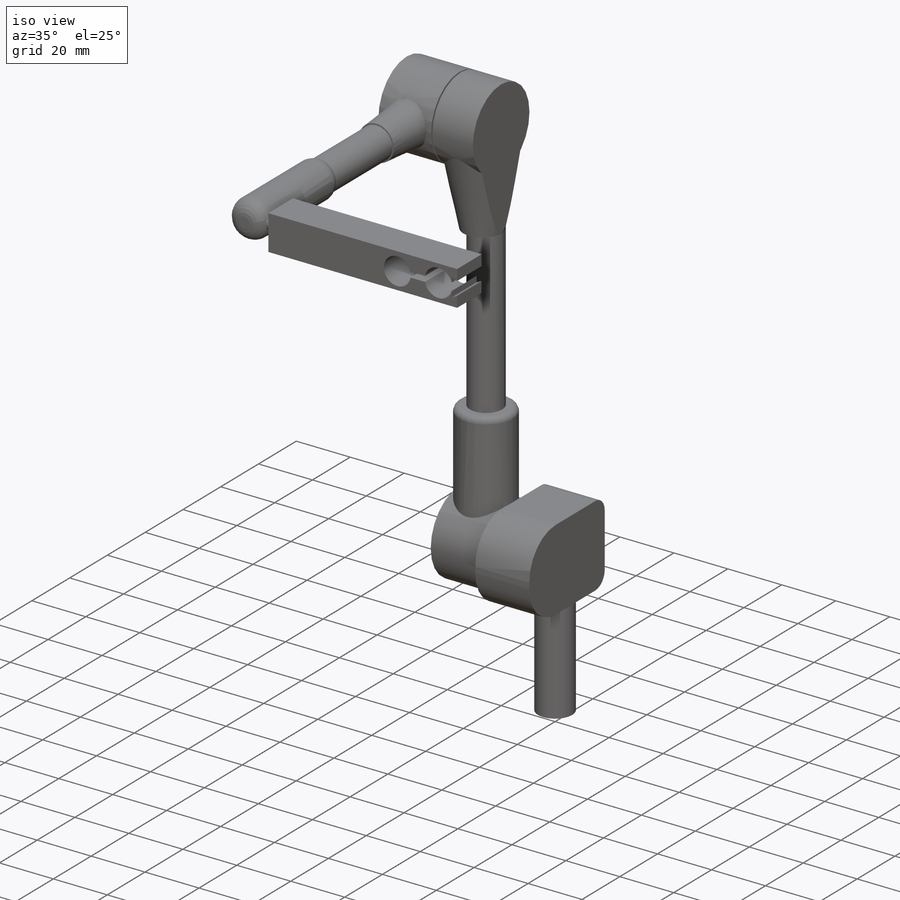
[diagram: iso view]
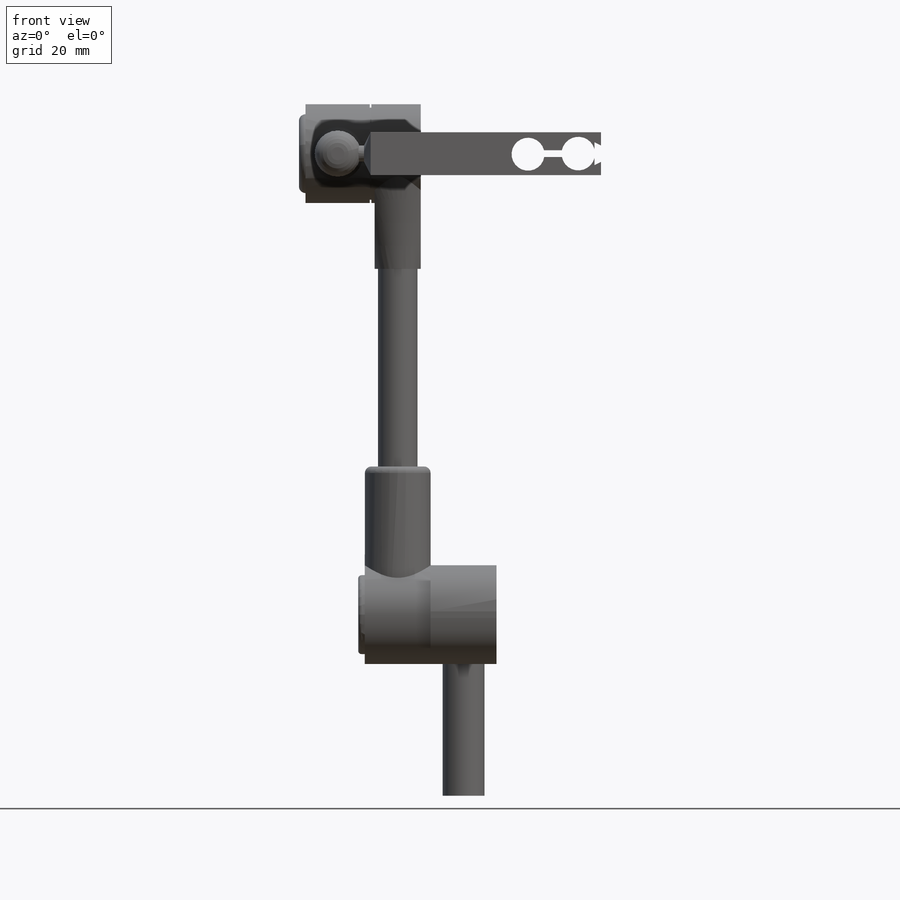
[diagram: front view]
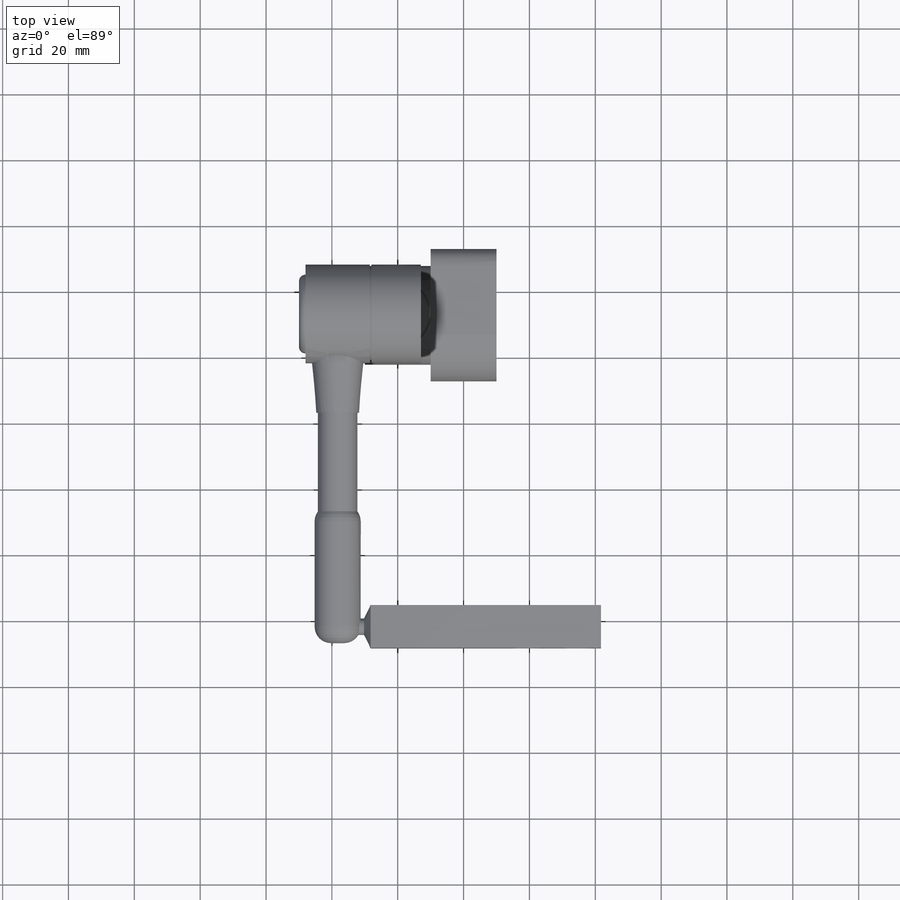
[diagram: top view]
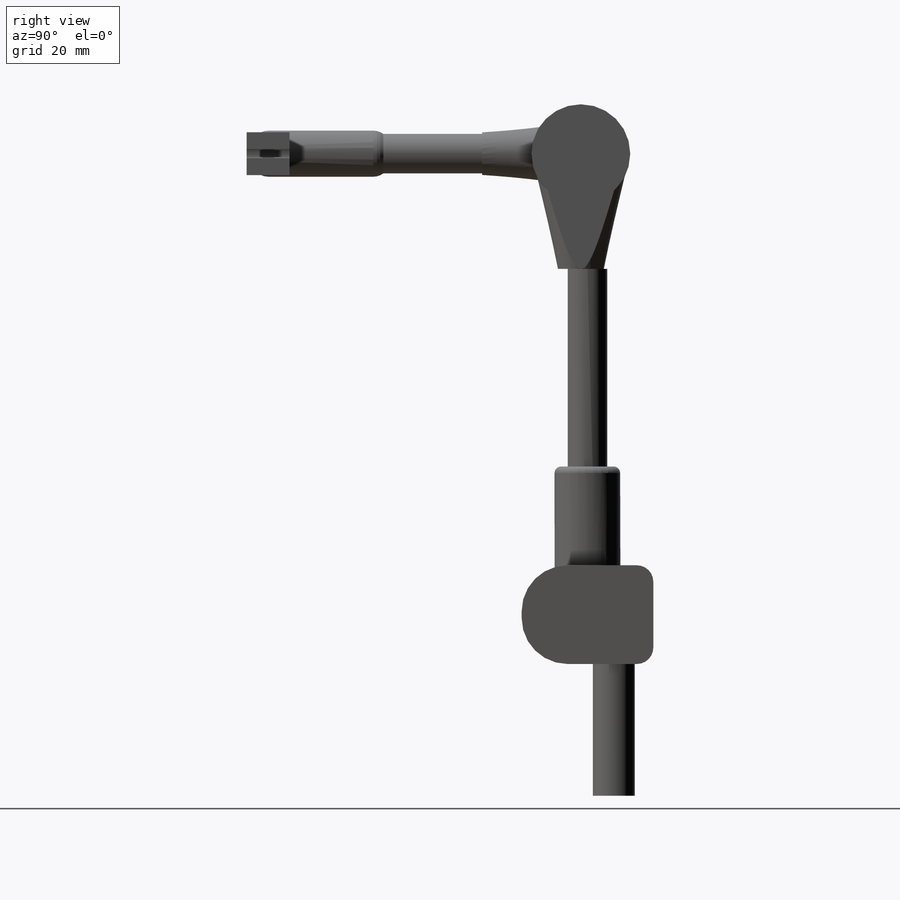
[diagram: right view]
SOLIDWORKS PART (.sldprt)
format: sldprt  version: not decoded by parser v0  size: 552,960 bytes
history: native  units: mm
features: sketch x23, plane x23, extrude x14, fillet x5, cut_extrude x4, material x1 (+12 scaffold rows collapsed)
feature tree (82):
  scaffold x12  (default folders/planes/origin — collapsed)
  material  "Rubber"
  sketch  "Sketch1"  dims[D1=6.35mm]
  extrude  "Boss-Extrude1"  Depth=40mm
  plane  "Plane3"  Offset=0mm
  sketch  "Sketch2"  dims[D1=10.0mm D2=10.0mm D3=10.0mm D4=40.0mm]
  extrude  "Boss-Extrude2"  Depth=30mm
  plane  "Plane4"  Offset=0mm
  sketch  "Sketch3"  dims[D1=5.0mm D2=14.0mm]
  cut_extrude  "Cut-Extrude2"  Depth=30mm
  plane  "Plane5"  Offset=0mm
  sketch  "Sketch5"  dims[D1=~10.095493mm]
  extrude  "Boss-Extrude3"  Depth=20mm
  plane  "Plane6"  Offset=0mm
  sketch  "Sketch6"  dims[D1=~34.696119mm]
  extrude  "Boss-Extrude4"  Depth=2mm
  fillet  "Fillet1"  Radius=1mm
  plane  "Plane7"
  plane  "Plane8"  Offset=15mm
  sketch  "Sketch7"  dims[D1=~9.223964mm]
  extrude  "Boss-Extrude5"  Depth=45mm
  fillet  "Fillet3"  Radius=2mm
  plane  "Plane9"  Offset=0mm
  sketch  "Sketch8"  dims[D1=~5.268439mm]
  extrude  "Boss-Extrude6"  Depth=60mm
  plane  "Plane10"  Offset=0mm
  sketch  "Sketch9"  dims[D1=~18.356289mm]
  plane  "Plane11"  Offset=35mm
  sketch  "Sketch10"  dims[D1=~19.05931mm]
  plane  "Plane13"
  sketch  "Sketch12"  dims[D1=~15.207129mm]
  cut_extrude  "Cut-Extrude3"  Depth=35mm
  plane  "Plane14"  Offset=0mm
  sketch  "Sketch13"  dims[D1=21.8596mm]
  extrude  "Boss-Extrude7"  Depth=15mm
  plane  "Plane15"  Offset=0mm
  sketch  "Sketch14"  dims[D1=14.5mm]
  extrude  "Boss-Extrude8"  Depth=0.5mm
  plane  "Plane16"  Offset=0mm
  sketch  "Sketch15"  dims[D1=~28.297229mm]
  extrude  "Boss-Extrude9"  Depth=19.5mm
  plane  "Plane17"  Offset=0mm
  sketch  "Sketch16"  dims[D1=~13.605391mm]
  extrude  "Boss-Extrude10"  Depth=2mm
  fillet  "Fillet4"  Radius=2mm
  plane  "Plane18"
  plane  "Plane19"  Offset=15mm
  sketch  "Sketch17"  dims[D1=9.75mm]
  plane  "Plane20"  Offset=30mm
  sketch  "Sketch18"  dims[D1=~18.196955mm]
  plane  "Plane21"  Offset=0mm
  sketch  "Sketch20"  dims[D1=~16.292254mm]
  extrude  "Boss-Extrude11"  Depth=30mm
  plane  "Plane22"  Offset=0mm
  sketch  "Sketch21"  dims[D1=~20.147825mm]
  extrude  "Boss-Extrude12"  Depth=40mm
  fillet  "Fillet5"  Radius=5mm
  fillet  "Fillet6"  Radius=5mm
  plane  "Plane23"
  sketch  "Sketch22"  dims[D1=~2.700208mm]
  extrude  "Boss-Extrude13"  Depth=8mm
  plane  "Plane24"  Offset=2mm
  sketch  "Sketch23"  dims[D1=13.0mm]
  plane  "Plane25"  Offset=0mm
  sketch  "Sketch24"
  extrude  "Boss-Extrude14"  Depth=70mm
  plane  "Plane26"  Offset=0mm
  sketch  "Sketch25"  dims[D1=2.5mm D2=2.5mm D3=2.0mm D4=3.5mm D5=3.5mm]
  cut_extrude  "Cut-Extrude4"  [1 undecoded]
  sketch  "Sketch26"  dims[c1.D1=~11.533251mm c1.D3=10.0mm c1.D4=10.2mm c2.D1=1.0mm c2.D2=1.0mm]
  cut_extrude  "Cut-Extrude9"  Depth=70mm
decode coverage: 44 of 46 modeling features carry decoded parameters
note: ~ marks probable driven/reference dimensions
note: 1 parameter value undecoded
note: suppression state not decoded; provenance and decode notes live in map.json
